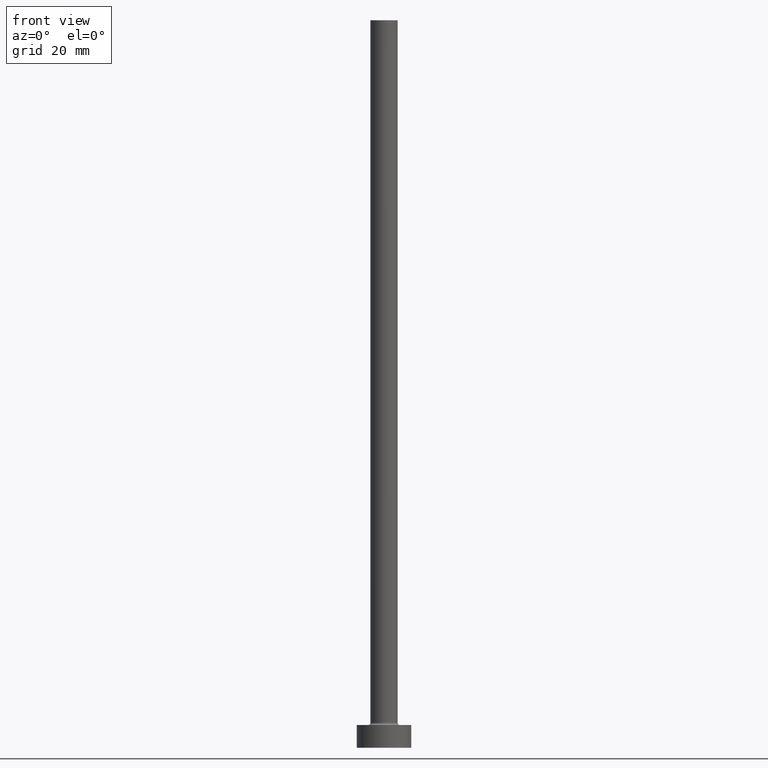
[diagram: clean part render]
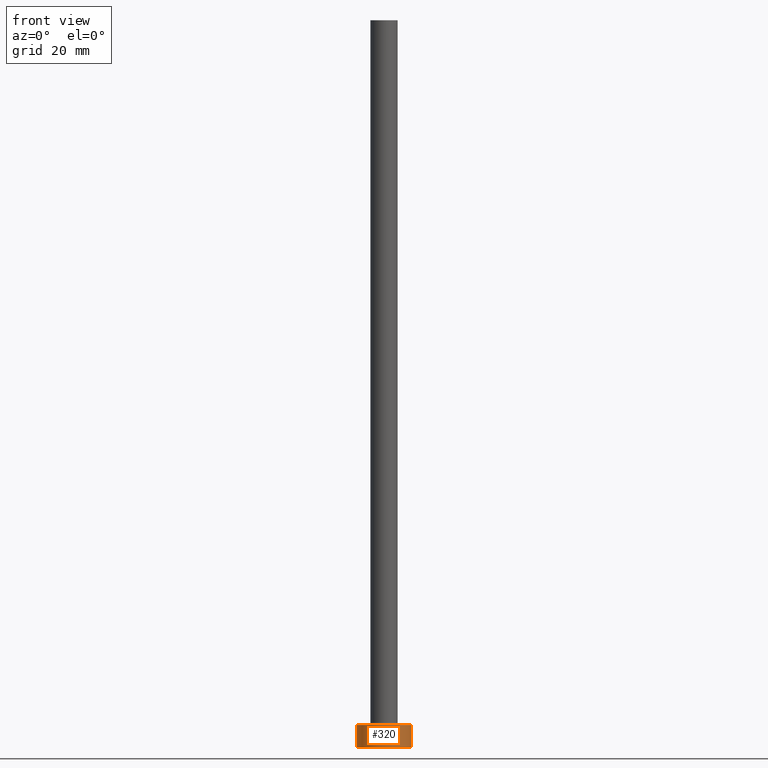
[diagram: same view with one face highlighted and labeled with its STEP entity id]
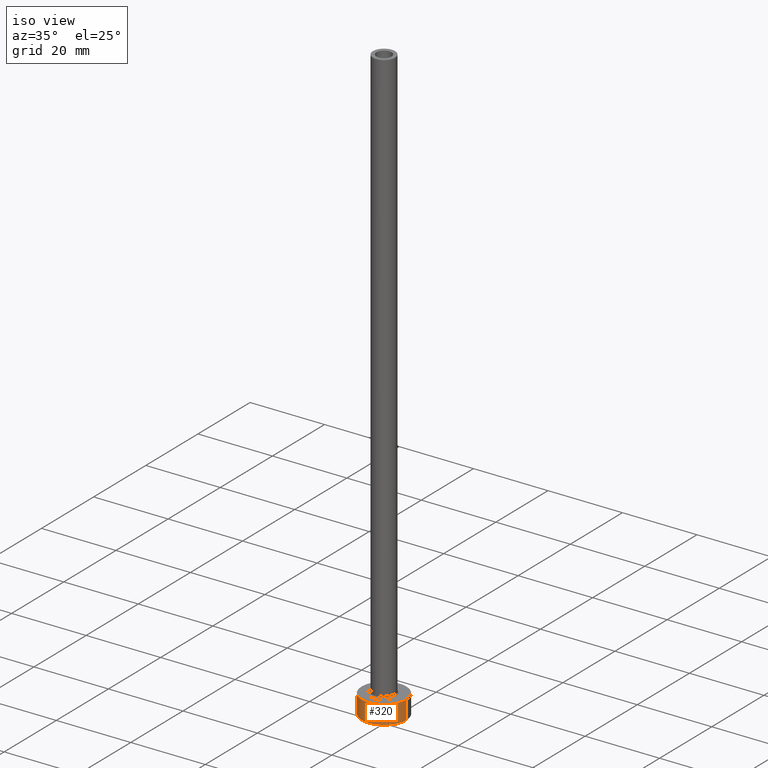
[diagram: same view with one face highlighted and labeled with its STEP entity id]
A machine part, front view. The second image highlights one B-rep face of the part: STEP entity #320.
A second angle (iso view) of the same face is appended — the face is thin or edge-on in the first view.
In plain terms, the highlighted cylindrical surface (edge-blend (fillet) strip) has radius 6 mm, axis along (-0, -0, -1).
Its self-contained STEP definition (entity closure, byte-faithful):
#5 = EDGE_LOOP ( 'NONE', ( #178, #367, #235, #407 ) ) ;
#16 = AXIS2_PLACEMENT_3D ( 'NONE', #256, #228, #370 ) ;
#24 = AXIS2_PLACEMENT_3D ( 'NONE', #246, #138, #287 ) ;
#28 = CYLINDRICAL_SURFACE ( 'NONE', #381, 6.000000000000000888 ) ;
#32 = CARTESIAN_POINT ( 'NONE',  ( -6.000000000000000888, 0.000000000000000000, 0.000000000000000000 ) ) ;
#33 = VERTEX_POINT ( 'NONE', #32 ) ;
#36 = DIRECTION ( 'NONE',  ( -0.000000000000000000, -0.000000000000000000, -1.000000000000000000 ) ) ;
#48 = DIRECTION ( 'NONE',  ( -0.000000000000000000, -0.000000000000000000, -1.000000000000000000 ) ) ;
#73 = EDGE_CURVE ( 'NONE', #33, #258, #363, .T. ) ;
#94 = EDGE_CURVE ( 'NONE', #460, #33, #372, .T. ) ;
#109 = DIRECTION ( 'NONE',  ( -1.000000000000000000, 0.000000000000000000, 0.000000000000000000 ) ) ;
#138 = DIRECTION ( 'NONE',  ( 0.000000000000000000, 0.000000000000000000, 1.000000000000000000 ) ) ;
#142 = CIRCLE ( 'NONE', #16, 6.000000000000000888 ) ;
#147 = LINE ( 'NONE', #408, #364 ) ;
#154 = EDGE_CURVE ( 'NONE', #326, #258, #147, .T. ) ;
#178 = ORIENTED_EDGE ( 'NONE', *, *, #154, .F. ) ;
#180 = EDGE_CURVE ( 'NONE', #460, #326, #142, .T. ) ;
#186 = DIRECTION ( 'NONE',  ( -0.000000000000000000, -0.000000000000000000, -1.000000000000000000 ) ) ;
#228 = DIRECTION ( 'NONE',  ( 0.000000000000000000, 0.000000000000000000, 1.000000000000000000 ) ) ;
#235 = ORIENTED_EDGE ( 'NONE', *, *, #94, .T. ) ;
#246 = CARTESIAN_POINT ( 'NONE',  ( 0.000000000000000000, 0.000000000000000000, 0.000000000000000000 ) ) ;
#254 = CARTESIAN_POINT ( 'NONE',  ( 6.000000000000000888, 7.347880794884120722E-16, 0.000000000000000000 ) ) ;
#256 = CARTESIAN_POINT ( 'NONE',  ( 0.000000000000000000, 0.000000000000000000, 5.000000000000000000 ) ) ;
#258 = VERTEX_POINT ( 'NONE', #254 ) ;
#284 = CARTESIAN_POINT ( 'NONE',  ( 6.000000000000000888, 7.347880794884120722E-16, 5.000000000000000000 ) ) ;
#287 = DIRECTION ( 'NONE',  ( 1.000000000000000000, 0.000000000000000000, 0.000000000000000000 ) ) ;
#295 = CARTESIAN_POINT ( 'NONE',  ( -6.000000000000000888, 0.000000000000000000, 5.000000000000000000 ) ) ;
#313 = CARTESIAN_POINT ( 'NONE',  ( 0.000000000000000000, 0.000000000000000000, 5.000000000000000000 ) ) ;
#320 = ADVANCED_FACE ( 'NONE', ( #374 ), #28, .T. ) ;
#326 = VERTEX_POINT ( 'NONE', #284 ) ;
#334 = CARTESIAN_POINT ( 'NONE',  ( -6.000000000000000888, 0.000000000000000000, 5.000000000000000000 ) ) ;
#363 = CIRCLE ( 'NONE', #24, 6.000000000000000888 ) ;
#364 = VECTOR ( 'NONE', #48, 1000.000000000000000 ) ;
#367 = ORIENTED_EDGE ( 'NONE', *, *, #180, .F. ) ;
#370 = DIRECTION ( 'NONE',  ( 1.000000000000000000, 0.000000000000000000, 0.000000000000000000 ) ) ;
#372 = LINE ( 'NONE', #295, #403 ) ;
#374 = FACE_OUTER_BOUND ( 'NONE', #5, .T. ) ;
#381 = AXIS2_PLACEMENT_3D ( 'NONE', #313, #36, #109 ) ;
#403 = VECTOR ( 'NONE', #186, 1000.000000000000000 ) ;
#407 = ORIENTED_EDGE ( 'NONE', *, *, #73, .T. ) ;
#408 = CARTESIAN_POINT ( 'NONE',  ( 6.000000000000000888, 7.347880794884120722E-16, 5.000000000000000000 ) ) ;
#460 = VERTEX_POINT ( 'NONE', #334 ) ;